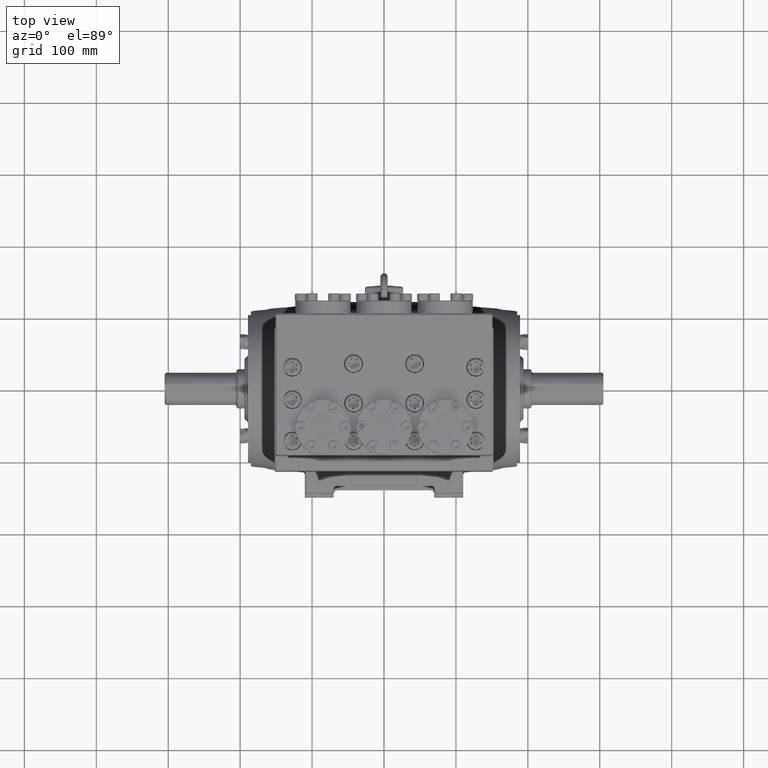
[diagram: clean part render]
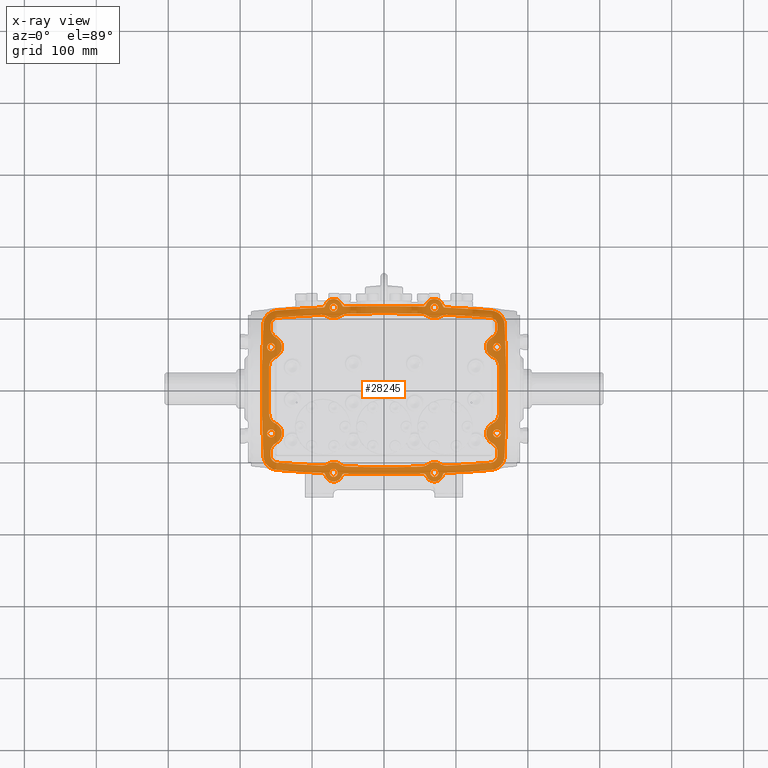
[diagram: x-ray — body ghosted, one internal face saturated and labeled with its STEP entity id]
A machine part, top view, then the same camera in x-ray: the body is ghosted and one INTERNAL B-rep face — a face not visible from any outside direction — is saturated and labeled: STEP entity #28245.
In plain terms, the highlighted planar face has unit normal (-0, 0, -1).
Its self-contained STEP definition (entity closure, byte-faithful):
#3 = VERTEX_POINT ( 'NONE', #17289 ) ;
#59 = ORIENTED_EDGE ( 'NONE', *, *, #76137, .T. ) ;
#153 = DIRECTION ( 'NONE',  ( -0.000000000000000000, -0.000000000000000000, -1.000000000000000000 ) ) ;
#180 = CARTESIAN_POINT ( 'NONE',  ( 6.181102362204724976, 2.362204724409448620, -4.572834645669291653 ) ) ;
#199 = CARTESIAN_POINT ( 'NONE',  ( 6.397637795275591621, -2.362204724409448620, -4.572834645669291653 ) ) ;
#458 = CARTESIAN_POINT ( 'NONE',  ( -3.328899281778211261, 4.528069397476806479, -4.572834645669291653 ) ) ;
#708 = AXIS2_PLACEMENT_3D ( 'NONE', #76529, #16491, #47667 ) ;
#752 = CIRCLE ( 'NONE', #54449, 0.5905511811023627100 ) ;
#789 = CARTESIAN_POINT ( 'NONE',  ( 3.079201460133393020, -4.033362305533763958, -4.572834645669291653 ) ) ;
#970 = EDGE_CURVE ( 'NONE', #61017, #12101, #74865, .T. ) ;
#1015 = DIRECTION ( 'NONE',  ( 1.000000000000000000, 0.000000000000000000, 0.000000000000000000 ) ) ;
#1100 = DIRECTION ( 'NONE',  ( -1.000000000000000000, 0.000000000000000000, 0.000000000000000000 ) ) ;
#1115 = EDGE_CURVE ( 'NONE', #35285, #23664, #55731, .T. ) ;
#1175 = EDGE_CURVE ( 'NONE', #4212, #17068, #752, .T. ) ;
#1239 = ORIENTED_EDGE ( 'NONE', *, *, #3572, .T. ) ;
#1321 = DIRECTION ( 'NONE',  ( 1.000000000000000000, 0.000000000000000000, 0.000000000000000000 ) ) ;
#1392 = DIRECTION ( 'NONE',  ( -1.000000000000000000, 0.000000000000000000, 0.000000000000000000 ) ) ;
#1599 = AXIS2_PLACEMENT_3D ( 'NONE', #25656, #75299, #19266 ) ;
#1655 = CARTESIAN_POINT ( 'NONE',  ( 0.000000000000000000, 66.25984251968503713, -4.572834645669291653 ) ) ;
#1667 = CIRCLE ( 'NONE', #77096, 0.2165354330708663400 ) ;
#1731 = CARTESIAN_POINT ( 'NONE',  ( -6.600522642258374262, 3.617487388704967888, -4.572834645669291653 ) ) ;
#1845 = AXIS2_PLACEMENT_3D ( 'NONE', #59179, #71594, #66382 ) ;
#1865 = CARTESIAN_POINT ( 'NONE',  ( 6.397637795275590733, 2.362204724409448620, -4.572834645669291653 ) ) ;
#1930 = VERTEX_POINT ( 'NONE', #5115 ) ;
#2183 = EDGE_CURVE ( 'NONE', #37829, #63983, #13683, .T. ) ;
#2198 = CIRCLE ( 'NONE', #31557, 0.2165354330708663400 ) ;
#2311 = VERTEX_POINT ( 'NONE', #66330 ) ;
#2314 = CARTESIAN_POINT ( 'NONE',  ( 0.000000000000000000, 66.25984251968503713, -4.572834645669291653 ) ) ;
#2423 = ORIENTED_EDGE ( 'NONE', *, *, #73412, .T. ) ;
#2467 = DIRECTION ( 'NONE',  ( -0.000000000000000000, -0.000000000000000000, -1.000000000000000000 ) ) ;
#2923 = VERTEX_POINT ( 'NONE', #17966 ) ;
#2963 = DIRECTION ( 'NONE',  ( -0.000000000000000000, -0.000000000000000000, -1.000000000000000000 ) ) ;
#3117 = DIRECTION ( 'NONE',  ( 1.000000000000000000, 0.000000000000000000, 0.000000000000000000 ) ) ;
#3176 = CARTESIAN_POINT ( 'NONE',  ( -2.395166083321290884, 4.059993271260593062, -4.572834645669291653 ) ) ;
#3273 = DIRECTION ( 'NONE',  ( 0.000000000000000000, 0.000000000000000000, 1.000000000000000000 ) ) ;
#3410 = CARTESIAN_POINT ( 'NONE',  ( 2.539370078740156966, 4.527559055118110187, -4.572834645669291653 ) ) ;
#3572 = EDGE_CURVE ( 'NONE', #12101, #13991, #6117, .T. ) ;
#3632 = DIRECTION ( 'NONE',  ( -0.000000000000000000, -0.000000000000000000, -1.000000000000000000 ) ) ;
#3881 = ORIENTED_EDGE ( 'NONE', *, *, #74982, .F. ) ;
#4006 = DIRECTION ( 'NONE',  ( 1.000000000000000000, 0.000000000000000000, 0.000000000000000000 ) ) ;
#4015 = DIRECTION ( 'NONE',  ( -1.000000000000000000, 0.000000000000000000, 0.000000000000000000 ) ) ;
#4076 = FACE_BOUND ( 'NONE', #62497, .T. ) ;
#4195 = ORIENTED_EDGE ( 'NONE', *, *, #65212, .F. ) ;
#4212 = VERTEX_POINT ( 'NONE', #37776 ) ;
#4344 = AXIS2_PLACEMENT_3D ( 'NONE', #39128, #20298, #45141 ) ;
#4474 = FACE_OUTER_BOUND ( 'NONE', #20926, .T. ) ;
#4528 = CARTESIAN_POINT ( 'NONE',  ( 2.755905511811023612, -4.527559055118110187, -4.572834645669291653 ) ) ;
#4617 = DIRECTION ( 'NONE',  ( -0.000000000000000000, -0.000000000000000000, -1.000000000000000000 ) ) ;
#4672 = ORIENTED_EDGE ( 'NONE', *, *, #57983, .F. ) ;
#4774 = DIRECTION ( 'NONE',  ( -0.000000000000000000, -0.000000000000000000, -1.000000000000000000 ) ) ;
#5115 = CARTESIAN_POINT ( 'NONE',  ( -5.964566929133859219, -2.362204724409448620, -4.572834645669291653 ) ) ;
#5327 = CIRCLE ( 'NONE', #38513, 0.1181102362204725503 ) ;
#5411 = DIRECTION ( 'NONE',  ( -0.000000000000000000, -0.000000000000000000, -1.000000000000000000 ) ) ;
#5966 = CIRCLE ( 'NONE', #46879, 0.5905511811023627100 ) ;
#6094 = ORIENTED_EDGE ( 'NONE', *, *, #6836, .F. ) ;
#6107 = AXIS2_PLACEMENT_3D ( 'NONE', #47885, #60721, #65954 ) ;
#6117 = CIRCLE ( 'NONE', #17620, 0.5905511811023621549 ) ;
#6119 = CARTESIAN_POINT ( 'NONE',  ( -6.287298468513237815, -1.295798474597251726, -4.572834645669291653 ) ) ;
#6148 = ORIENTED_EDGE ( 'NONE', *, *, #57136, .T. ) ;
#6158 = AXIS2_PLACEMENT_3D ( 'NONE', #7379, #61446, #74237 ) ;
#6268 = VERTEX_POINT ( 'NONE', #43536 ) ;
#6294 = CIRCLE ( 'NONE', #15278, 0.2165354330708663400 ) ;
#6414 = CIRCLE ( 'NONE', #60133, 70.47244094488191024 ) ;
#6618 = EDGE_CURVE ( 'NONE', #22907, #42979, #67800, .T. ) ;
#6692 = VERTEX_POINT ( 'NONE', #33392 ) ;
#6836 = EDGE_CURVE ( 'NONE', #77907, #34891, #10126, .T. ) ;
#6913 = CARTESIAN_POINT ( 'NONE',  ( -3.431250907682157347, -4.129016328419574222, -4.572834645669291653 ) ) ;
#7286 = EDGE_CURVE ( 'NONE', #1930, #19369, #6294, .T. ) ;
#7379 = CARTESIAN_POINT ( 'NONE',  ( -2.188326920457461355, 4.690670183305741148, -4.572834645669291653 ) ) ;
#7456 = ORIENTED_EDGE ( 'NONE', *, *, #70019, .F. ) ;
#7540 = AXIS2_PLACEMENT_3D ( 'NONE', #45808, #70258, #60182 ) ;
#7718 = CARTESIAN_POINT ( 'NONE',  ( 2.034426654831557268, -3.592427487403074604, -4.572834645669291653 ) ) ;
#7860 = VERTEX_POINT ( 'NONE', #38895 ) ;
#7924 = ORIENTED_EDGE ( 'NONE', *, *, #1175, .T. ) ;
#8658 = DIRECTION ( 'NONE',  ( -0.000000000000000000, -0.000000000000000000, -1.000000000000000000 ) ) ;
#9042 = DIRECTION ( 'NONE',  ( 0.000000000000000000, 0.000000000000000000, 1.000000000000000000 ) ) ;
#9213 = VERTEX_POINT ( 'NONE', #28604 ) ;
#9218 = DIRECTION ( 'NONE',  ( -1.000000000000000000, 0.000000000000000000, 0.000000000000000000 ) ) ;
#9326 = EDGE_LOOP ( 'NONE', ( #30292, #4195 ) ) ;
#9487 = CIRCLE ( 'NONE', #19634, 0.7874015748031557571 ) ;
#9521 = VERTEX_POINT ( 'NONE', #76553 ) ;
#9811 = VERTEX_POINT ( 'NONE', #63292 ) ;
#9876 = CARTESIAN_POINT ( 'NONE',  ( -6.600522642258387584, -3.617487388704948792, -4.572834645669291653 ) ) ;
#9931 = CIRCLE ( 'NONE', #40613, 0.5905511811023624880 ) ;
#9935 = DIRECTION ( 'NONE',  ( -0.000000000000000000, -0.000000000000000000, -1.000000000000000000 ) ) ;
#9960 = CARTESIAN_POINT ( 'NONE',  ( -2.755905511811023612, -4.527559055118110187, -4.572834645669291653 ) ) ;
#9964 = EDGE_CURVE ( 'NONE', #76460, #30072, #57654, .T. ) ;
#9988 = EDGE_CURVE ( 'NONE', #58752, #9521, #71839, .T. ) ;
#10087 = FACE_BOUND ( 'NONE', #22882, .T. ) ;
#10126 = CIRCLE ( 'NONE', #7540, 0.3937007874015860942 ) ;
#10380 = ORIENTED_EDGE ( 'NONE', *, *, #6618, .T. ) ;
#10439 = AXIS2_PLACEMENT_3D ( 'NONE', #33141, #63592, #69211 ) ;
#10520 = DIRECTION ( 'NONE',  ( -0.000000000000000000, -0.000000000000000000, -1.000000000000000000 ) ) ;
#10617 = CARTESIAN_POINT ( 'NONE',  ( -5.625679077422456764, -3.404561556174485748, -4.572834645669291653 ) ) ;
#10659 = AXIS2_PLACEMENT_3D ( 'NONE', #33966, #73960, #49129 ) ;
#10695 = CARTESIAN_POINT ( 'NONE',  ( 5.696847126488347790, 1.284939828162083186, -4.572834645669291653 ) ) ;
#10722 = CARTESIAN_POINT ( 'NONE',  ( 2.755905511811023612, -4.527559055118110187, -4.572834645669291653 ) ) ;
#10895 = ORIENTED_EDGE ( 'NONE', *, *, #49360, .F. ) ;
#11044 = DIRECTION ( 'NONE',  ( -0.000000000000000000, 0.000000000000000000, 1.000000000000000000 ) ) ;
#11053 = DIRECTION ( 'NONE',  ( -1.000000000000000000, 0.000000000000000000, 0.000000000000000000 ) ) ;
#11093 = DIRECTION ( 'NONE',  ( -1.000000000000000000, 0.000000000000000000, 0.000000000000000000 ) ) ;
#11279 = EDGE_CURVE ( 'NONE', #42886, #56775, #29697, .T. ) ;
#11329 = CARTESIAN_POINT ( 'NONE',  ( -3.079201460133393020, -4.033362305533763958, -4.572834645669291653 ) ) ;
#11410 = CIRCLE ( 'NONE', #45855, 0.5905511811023627100 ) ;
#11537 = ORIENTED_EDGE ( 'NONE', *, *, #12977, .T. ) ;
#11669 = VERTEX_POINT ( 'NONE', #60656 ) ;
#11962 = CIRCLE ( 'NONE', #23465, 70.86614173228348079 ) ;
#12101 = VERTEX_POINT ( 'NONE', #11329 ) ;
#12376 = CARTESIAN_POINT ( 'NONE',  ( 5.846811382010137059, 3.969636542835852655, -4.572834645669291653 ) ) ;
#12418 = CIRCLE ( 'NONE', #20021, 0.3937007874015860942 ) ;
#12517 = CIRCLE ( 'NONE', #76383, 0.7874015748031557571 ) ;
#12660 = DIRECTION ( 'NONE',  ( -1.000000000000000000, 0.000000000000000000, 0.000000000000000000 ) ) ;
#12772 = DIRECTION ( 'NONE',  ( 1.000000000000000000, 0.000000000000000000, 0.000000000000000000 ) ) ;
#12803 = CARTESIAN_POINT ( 'NONE',  ( 5.879475132747624677, 4.361980001285700403, -4.572834645669291653 ) ) ;
#12972 = AXIS2_PLACEMENT_3D ( 'NONE', #29820, #67458, #54228 ) ;
#12977 = EDGE_CURVE ( 'NONE', #33896, #21367, #9487, .T. ) ;
#13181 = CARTESIAN_POINT ( 'NONE',  ( -2.301842638728265111, 4.658047957668189021, -4.572834645669291653 ) ) ;
#13252 = ORIENTED_EDGE ( 'NONE', *, *, #28839, .T. ) ;
#13334 = EDGE_CURVE ( 'NONE', #34012, #55163, #55897, .T. ) ;
#13346 = VERTEX_POINT ( 'NONE', #48740 ) ;
#13354 = VERTEX_POINT ( 'NONE', #66017 ) ;
#13388 = CARTESIAN_POINT ( 'NONE',  ( 3.431250907682157347, -4.129016328419574222, -4.572834645669291653 ) ) ;
#13619 = DIRECTION ( 'NONE',  ( 0.000000000000000000, 0.000000000000000000, 1.000000000000000000 ) ) ;
#13629 = AXIS2_PLACEMENT_3D ( 'NONE', #4528, #71012, #34539 ) ;
#13657 = DIRECTION ( 'NONE',  ( -1.000000000000000000, 0.000000000000000000, 0.000000000000000000 ) ) ;
#13683 = CIRCLE ( 'NONE', #46872, 0.2165354330708663400 ) ;
#13728 = DIRECTION ( 'NONE',  ( 1.000000000000000000, 0.000000000000000000, 0.000000000000000000 ) ) ;
#13786 = CIRCLE ( 'NONE', #40579, 0.2165354330708663400 ) ;
#13991 = VERTEX_POINT ( 'NONE', #6913 ) ;
#14280 = DIRECTION ( 'NONE',  ( -1.000000000000000000, 0.000000000000000000, 0.000000000000000000 ) ) ;
#14294 = DIRECTION ( 'NONE',  ( 1.000000000000000000, 0.000000000000000000, 0.000000000000000000 ) ) ;
#14489 = AXIS2_PLACEMENT_3D ( 'NONE', #9960, #15583, #34359 ) ;
#14616 = CIRCLE ( 'NONE', #23541, 0.7874015748031557571 ) ;
#14731 = CARTESIAN_POINT ( 'NONE',  ( -2.755905511811023612, 4.527559055118110187, -4.572834645669291653 ) ) ;
#14883 = EDGE_CURVE ( 'NONE', #22781, #33896, #34196, .T. ) ;
#15021 = DIRECTION ( 'NONE',  ( -0.000000000000000000, -0.000000000000000000, -1.000000000000000000 ) ) ;
#15044 = EDGE_CURVE ( 'NONE', #54892, #61017, #9931, .T. ) ;
#15074 = CARTESIAN_POINT ( 'NONE',  ( 3.334447447247841367, -4.646049250672071196, -4.572834645669291653 ) ) ;
#15128 = CARTESIAN_POINT ( 'NONE',  ( 5.846811382010123737, -3.969636542835872195, -4.572834645669291653 ) ) ;
#15227 = DIRECTION ( 'NONE',  ( -0.000000000000000000, 0.000000000000000000, 1.000000000000000000 ) ) ;
#15278 = AXIS2_PLACEMENT_3D ( 'NONE', #30435, #65722, #42076 ) ;
#15464 = DIRECTION ( 'NONE',  ( -0.000000000000000000, -0.000000000000000000, -1.000000000000000000 ) ) ;
#15583 = DIRECTION ( 'NONE',  ( 0.000000000000000000, 0.000000000000000000, 1.000000000000000000 ) ) ;
#15680 = AXIS2_PLACEMENT_3D ( 'NONE', #24633, #78301, #61099 ) ;
#15763 = DIRECTION ( 'NONE',  ( 1.000000000000000000, 0.000000000000000000, 0.000000000000000000 ) ) ;
#15840 = VERTEX_POINT ( 'NONE', #63273 ) ;
#15881 = AXIS2_PLACEMENT_3D ( 'NONE', #52476, #22458, #77700 ) ;
#16022 = CARTESIAN_POINT ( 'NONE',  ( 5.696847126488347790, -1.284939828162083186, -4.572834645669291653 ) ) ;
#16441 = ORIENTED_EDGE ( 'NONE', *, *, #19661, .T. ) ;
#16491 = DIRECTION ( 'NONE',  ( -0.000000000000000000, 0.000000000000000000, -1.000000000000000000 ) ) ;
#16556 = VERTEX_POINT ( 'NONE', #77589 ) ;
#16763 = CARTESIAN_POINT ( 'NONE',  ( 2.051618992759706384, 4.182728360702427040, -4.572834645669291653 ) ) ;
#16875 = FACE_BOUND ( 'NONE', #23961, .T. ) ;
#16989 = EDGE_CURVE ( 'NONE', #23664, #19161, #74040, .T. ) ;
#17065 = AXIS2_PLACEMENT_3D ( 'NONE', #31265, #49661, #13657 ) ;
#17068 = VERTEX_POINT ( 'NONE', #23822 ) ;
#17208 = CIRCLE ( 'NONE', #29998, 0.5905511811023621549 ) ;
#17289 = CARTESIAN_POINT ( 'NONE',  ( -2.972440944881889813, -4.527559055118110187, -4.572834645669291653 ) ) ;
#17357 = EDGE_CURVE ( 'NONE', #56775, #42886, #20182, .T. ) ;
#17620 = AXIS2_PLACEMENT_3D ( 'NONE', #34422, #58862, #4015 ) ;
#17715 = DIRECTION ( 'NONE',  ( -1.000000000000000000, 0.000000000000000000, 0.000000000000000000 ) ) ;
#17806 = DIRECTION ( 'NONE',  ( -1.000000000000000000, 0.000000000000000000, 0.000000000000000000 ) ) ;
#17966 = CARTESIAN_POINT ( 'NONE',  ( 3.328899281778332053, 4.528069397476797597, -4.572834645669291653 ) ) ;
#18409 = CIRCLE ( 'NONE', #68278, 70.47244094488188182 ) ;
#18651 = AXIS2_PLACEMENT_3D ( 'NONE', #15074, #15464, #51074 ) ;
#19161 = VERTEX_POINT ( 'NONE', #3176 ) ;
#19178 = EDGE_CURVE ( 'NONE', #46823, #40504, #41341, .T. ) ;
#19236 = ORIENTED_EDGE ( 'NONE', *, *, #56728, .F. ) ;
#19252 = VERTEX_POINT ( 'NONE', #66790 ) ;
#19266 = DIRECTION ( 'NONE',  ( -1.000000000000000000, 0.000000000000000000, 0.000000000000000000 ) ) ;
#19369 = VERTEX_POINT ( 'NONE', #56732 ) ;
#19541 = EDGE_CURVE ( 'NONE', #60143, #2311, #41396, .T. ) ;
#19634 = AXIS2_PLACEMENT_3D ( 'NONE', #55650, #13619, #74852 ) ;
#19655 = DIRECTION ( 'NONE',  ( -0.000000000000000000, -0.000000000000000000, -1.000000000000000000 ) ) ;
#19661 = EDGE_CURVE ( 'NONE', #2923, #9521, #45218, .T. ) ;
#19708 = DIRECTION ( 'NONE',  ( 0.000000000000000000, 0.000000000000000000, 1.000000000000000000 ) ) ;
#19766 = CIRCLE ( 'NONE', #24905, 0.5905511811023621549 ) ;
#19866 = CARTESIAN_POINT ( 'NONE',  ( -3.218739060160478171, 4.622351211561278816, -4.572834645669291653 ) ) ;
#19964 = DIRECTION ( 'NONE',  ( 0.000000000000000000, 0.000000000000000000, 1.000000000000000000 ) ) ;
#20000 = EDGE_CURVE ( 'NONE', #13354, #71837, #63140, .T. ) ;
#20021 = AXIS2_PLACEMENT_3D ( 'NONE', #22911, #70615, #58587 ) ;
#20045 = DIRECTION ( 'NONE',  ( 1.000000000000000000, 0.000000000000000000, 0.000000000000000000 ) ) ;
#20182 = CIRCLE ( 'NONE', #55979, 0.2165354330708663400 ) ;
#20298 = DIRECTION ( 'NONE',  ( -0.000000000000000000, -0.000000000000000000, -1.000000000000000000 ) ) ;
#20548 = EDGE_CURVE ( 'NONE', #60208, #49169, #14616, .T. ) ;
#20687 = CARTESIAN_POINT ( 'NONE',  ( 6.600522642258387584, -3.617487388704948792, -4.572834645669291653 ) ) ;
#20712 = DIRECTION ( 'NONE',  ( -0.000000000000000000, 0.000000000000000000, 1.000000000000000000 ) ) ;
#20837 = CIRCLE ( 'NONE', #32332, 0.2165354330708663400 ) ;
#20926 = EDGE_LOOP ( 'NONE', ( #36577, #13252, #55679, #72326, #22087, #50005, #19236, #56758, #4672, #50240, #74782, #16441, #70485, #59552, #60822, #68368, #61123, #25030, #57050, #11537, #49381, #52901, #61321, #23394 ) ) ;
#20936 = AXIS2_PLACEMENT_3D ( 'NONE', #2314, #76739, #3117 ) ;
#21101 = VERTEX_POINT ( 'NONE', #68703 ) ;
#21275 = AXIS2_PLACEMENT_3D ( 'NONE', #75488, #69133, #14280 ) ;
#21367 = VERTEX_POINT ( 'NONE', #1731 ) ;
#21795 = DIRECTION ( 'NONE',  ( -0.000000000000000000, -0.000000000000000000, -1.000000000000000000 ) ) ;
#21859 = DIRECTION ( 'NONE',  ( -1.000000000000000000, 0.000000000000000000, 0.000000000000000000 ) ) ;
#21896 = EDGE_CURVE ( 'NONE', #47613, #60143, #25353, .T. ) ;
#21910 = VERTEX_POINT ( 'NONE', #69692 ) ;
#22087 = ORIENTED_EDGE ( 'NONE', *, *, #38348, .F. ) ;
#22286 = ORIENTED_EDGE ( 'NONE', *, *, #19541, .F. ) ;
#22366 = CIRCLE ( 'NONE', #35170, 0.2165354330708663400 ) ;
#22387 = CARTESIAN_POINT ( 'NONE',  ( -5.938974744346537271, 1.823572276285767568, -4.572834645669291653 ) ) ;
#22434 = CARTESIAN_POINT ( 'NONE',  ( -5.879475132747624677, 4.361980001285700403, -4.572834645669291653 ) ) ;
#22443 = CARTESIAN_POINT ( 'NONE',  ( -2.539370078740156966, -4.527559055118110187, -4.572834645669291653 ) ) ;
#22447 = DIRECTION ( 'NONE',  ( 1.000000000000000000, 0.000000000000000000, 0.000000000000000000 ) ) ;
#22458 = DIRECTION ( 'NONE',  ( -0.000000000000000000, -0.000000000000000000, -1.000000000000000000 ) ) ;
#22527 = DIRECTION ( 'NONE',  ( -1.000000000000000000, 0.000000000000000000, 0.000000000000000000 ) ) ;
#22781 = VERTEX_POINT ( 'NONE', #458 ) ;
#22816 = CARTESIAN_POINT ( 'NONE',  ( -3.079201460133393464, 4.033362305533763958, -4.572834645669291653 ) ) ;
#22882 = EDGE_LOOP ( 'NONE', ( #33052, #55380 ) ) ;
#22907 = VERTEX_POINT ( 'NONE', #49188 ) ;
#22911 = CARTESIAN_POINT ( 'NONE',  ( -5.814147631272645000, -3.577293084386023114, -4.572834645669291653 ) ) ;
#22966 = VERTEX_POINT ( 'NONE', #13181 ) ;
#23048 = ORIENTED_EDGE ( 'NONE', *, *, #16989, .T. ) ;
#23155 = CARTESIAN_POINT ( 'NONE',  ( -2.188326920457581259, -4.690670183305729601, -4.572834645669291653 ) ) ;
#23166 = ORIENTED_EDGE ( 'NONE', *, *, #54973, .T. ) ;
#23176 = DIRECTION ( 'NONE',  ( -1.000000000000000000, 0.000000000000000000, 0.000000000000000000 ) ) ;
#23260 = ORIENTED_EDGE ( 'NONE', *, *, #19178, .F. ) ;
#23394 = ORIENTED_EDGE ( 'NONE', *, *, #78581, .T. ) ;
#23465 = AXIS2_PLACEMENT_3D ( 'NONE', #75439, #74274, #37431 ) ;
#23541 = AXIS2_PLACEMENT_3D ( 'NONE', #63464, #15021, #1015 ) ;
#23664 = VERTEX_POINT ( 'NONE', #22816 ) ;
#23707 = DIRECTION ( 'NONE',  ( 0.000000000000000000, 0.000000000000000000, 1.000000000000000000 ) ) ;
#23820 = CARTESIAN_POINT ( 'NONE',  ( 2.972440944881889813, -4.527559055118110187, -4.572834645669291653 ) ) ;
#23822 = CARTESIAN_POINT ( 'NONE',  ( -5.903390719813591758, -2.883383140291965852, -4.572834645669291653 ) ) ;
#23923 = DIRECTION ( 'NONE',  ( -0.000000000000000000, -0.000000000000000000, -1.000000000000000000 ) ) ;
#23961 = EDGE_LOOP ( 'NONE', ( #65823, #54753 ) ) ;
#24410 = CIRCLE ( 'NONE', #69208, 0.5905511811023624880 ) ;
#24633 = CARTESIAN_POINT ( 'NONE',  ( 64.17322834645671037, 0.000000000000000000, -4.572834645669291653 ) ) ;
#24905 = AXIS2_PLACEMENT_3D ( 'NONE', #31410, #37797, #60664 ) ;
#24999 = CARTESIAN_POINT ( 'NONE',  ( -6.181102362204724976, 2.362204724409448620, -4.572834645669291653 ) ) ;
#25030 = ORIENTED_EDGE ( 'NONE', *, *, #69398, .T. ) ;
#25339 = ORIENTED_EDGE ( 'NONE', *, *, #1115, .T. ) ;
#25353 = CIRCLE ( 'NONE', #75242, 0.3937007874015839293 ) ;
#25504 = AXIS2_PLACEMENT_3D ( 'NONE', #60825, #35985, #12772 ) ;
#25568 = DIRECTION ( 'NONE',  ( 1.000000000000000000, 0.000000000000000000, 0.000000000000000000 ) ) ;
#25656 = CARTESIAN_POINT ( 'NONE',  ( 6.181102362204724976, 2.362204724409448620, -4.572834645669291653 ) ) ;
#25998 = ORIENTED_EDGE ( 'NONE', *, *, #56890, .F. ) ;
#26056 = DIRECTION ( 'NONE',  ( -0.000000000000000000, -0.000000000000000000, -1.000000000000000000 ) ) ;
#26295 = AXIS2_PLACEMENT_3D ( 'NONE', #34276, #76711, #21859 ) ;
#26316 = DIRECTION ( 'NONE',  ( -0.000000000000000000, -0.000000000000000000, -1.000000000000000000 ) ) ;
#26422 = CARTESIAN_POINT ( 'NONE',  ( 2.034426654831557268, 3.592427487403074604, -4.572834645669291653 ) ) ;
#26608 = VERTEX_POINT ( 'NONE', #9876 ) ;
#26639 = EDGE_CURVE ( 'NONE', #34891, #51037, #63371, .T. ) ;
#26710 = CARTESIAN_POINT ( 'NONE',  ( 2.972440944881889813, 4.527559055118110187, -4.572834645669291653 ) ) ;
#27046 = CARTESIAN_POINT ( 'NONE',  ( -2.972440944881889813, 4.527559055118110187, -4.572834645669291653 ) ) ;
#27127 = CARTESIAN_POINT ( 'NONE',  ( 0.000000000000000000, 66.25984251968503713, -4.572834645669291653 ) ) ;
#27159 = DIRECTION ( 'NONE',  ( 1.000000000000000000, 0.000000000000000000, 0.000000000000000000 ) ) ;
#27189 = EDGE_LOOP ( 'NONE', ( #6148, #55793 ) ) ;
#27597 = CARTESIAN_POINT ( 'NONE',  ( 5.903390719813591758, 2.883383140291965852, -4.572834645669291653 ) ) ;
#28177 = EDGE_CURVE ( 'NONE', #56072, #13354, #33958, .T. ) ;
#28227 = DIRECTION ( 'NONE',  ( 1.000000000000000000, 0.000000000000000000, 0.000000000000000000 ) ) ;
#28245 = ADVANCED_FACE ( 'NONE', ( #52903, #65341, #40897, #16875, #4076, #4474, #64163, #53675, #10087, #77326 ), #64956, .F. ) ;
#28480 = DIRECTION ( 'NONE',  ( -0.000000000000000000, -0.000000000000000000, -1.000000000000000000 ) ) ;
#28604 = CARTESIAN_POINT ( 'NONE',  ( -6.207335136765529171, -3.597390236545476405, -4.572834645669291653 ) ) ;
#28621 = VERTEX_POINT ( 'NONE', #27597 ) ;
#28676 = CIRCLE ( 'NONE', #69634, 0.5905511811023627100 ) ;
#28725 = DIRECTION ( 'NONE',  ( -1.000000000000000000, 0.000000000000000000, 0.000000000000000000 ) ) ;
#28737 = CIRCLE ( 'NONE', #38974, 0.5905511811023627100 ) ;
#28839 = EDGE_CURVE ( 'NONE', #65153, #6268, #57011, .T. ) ;
#29267 = CARTESIAN_POINT ( 'NONE',  ( 0.000000000000000000, 66.25984251968503713, -4.572834645669291653 ) ) ;
#29667 = VERTEX_POINT ( 'NONE', #16763 ) ;
#29697 = CIRCLE ( 'NONE', #74453, 0.2165354330708663400 ) ;
#29820 = CARTESIAN_POINT ( 'NONE',  ( -6.181102362204724976, 2.362204724409448620, -4.572834645669291653 ) ) ;
#29925 = CIRCLE ( 'NONE', #38894, 0.5905511811023624880 ) ;
#29951 = CARTESIAN_POINT ( 'NONE',  ( 2.755905511811023612, -4.527559055118110187, -4.572834645669291653 ) ) ;
#29998 = AXIS2_PLACEMENT_3D ( 'NONE', #65901, #11044, #30609 ) ;
#30051 = CIRCLE ( 'NONE', #37705, 70.47244094488191024 ) ;
#30072 = VERTEX_POINT ( 'NONE', #44250 ) ;
#30292 = ORIENTED_EDGE ( 'NONE', *, *, #7286, .F. ) ;
#30435 = CARTESIAN_POINT ( 'NONE',  ( -6.181102362204725864, -2.362204724409448620, -4.572834645669291653 ) ) ;
#30599 = VERTEX_POINT ( 'NONE', #70066 ) ;
#30609 = DIRECTION ( 'NONE',  ( 1.000000000000000000, 0.000000000000000000, 0.000000000000000000 ) ) ;
#31265 = CARTESIAN_POINT ( 'NONE',  ( -5.625679077422456764, 3.404561556174486636, -4.572834645669291653 ) ) ;
#31410 = CARTESIAN_POINT ( 'NONE',  ( 3.402497408455763317, 3.539165555949416841, -4.572834645669291653 ) ) ;
#31466 = EDGE_CURVE ( 'NONE', #57454, #21910, #6414, .T. ) ;
#31511 = AXIS2_PLACEMENT_3D ( 'NONE', #49134, #66796, #37121 ) ;
#31557 = AXIS2_PLACEMENT_3D ( 'NONE', #44999, #45401, #69450 ) ;
#31588 = VERTEX_POINT ( 'NONE', #38530 ) ;
#31603 = ORIENTED_EDGE ( 'NONE', *, *, #20000, .F. ) ;
#31630 = CIRCLE ( 'NONE', #73838, 0.5905511811023627100 ) ;
#32055 = DIRECTION ( 'NONE',  ( -1.000000000000000000, 0.000000000000000000, 0.000000000000000000 ) ) ;
#32332 = AXIS2_PLACEMENT_3D ( 'NONE', #57590, #54229, #78658 ) ;
#32443 = ORIENTED_EDGE ( 'NONE', *, *, #17357, .T. ) ;
#32488 = CARTESIAN_POINT ( 'NONE',  ( 0.000000000000000000, -66.25984251968503713, -4.572834645669291653 ) ) ;
#32666 = ORIENTED_EDGE ( 'NONE', *, *, #11279, .T. ) ;
#32892 = DIRECTION ( 'NONE',  ( -1.000000000000000000, 0.000000000000000000, 0.000000000000000000 ) ) ;
#32922 = EDGE_CURVE ( 'NONE', #58752, #76460, #5327, .T. ) ;
#33052 = ORIENTED_EDGE ( 'NONE', *, *, #56591, .T. ) ;
#33063 = DIRECTION ( 'NONE',  ( 1.000000000000000000, 0.000000000000000000, 0.000000000000000000 ) ) ;
#33141 = CARTESIAN_POINT ( 'NONE',  ( 64.17322834645671037, 0.000000000000000000, -4.572834645669291653 ) ) ;
#33261 = AXIS2_PLACEMENT_3D ( 'NONE', #45416, #39398, #1392 ) ;
#33386 = EDGE_CURVE ( 'NONE', #51037, #46823, #11410, .T. ) ;
#33392 = CARTESIAN_POINT ( 'NONE',  ( 5.964566929133858331, 2.362204724409448620, -4.572834645669291653 ) ) ;
#33563 = CARTESIAN_POINT ( 'NONE',  ( -3.431250907682149798, 4.129016328419567117, -4.572834645669291653 ) ) ;
#33600 = ORIENTED_EDGE ( 'NONE', *, *, #33386, .F. ) ;
#33614 = DIRECTION ( 'NONE',  ( 1.000000000000000000, 0.000000000000000000, 0.000000000000000000 ) ) ;
#33896 = VERTEX_POINT ( 'NONE', #22434 ) ;
#33958 = CIRCLE ( 'NONE', #41648, 0.5905511811023624880 ) ;
#33966 = CARTESIAN_POINT ( 'NONE',  ( 6.181102362204725864, -2.362204724409448620, -4.572834645669291653 ) ) ;
#34012 = VERTEX_POINT ( 'NONE', #12803 ) ;
#34026 = CIRCLE ( 'NONE', #31511, 0.5905511811023627100 ) ;
#34196 = CIRCLE ( 'NONE', #78944, 70.86614173228346658 ) ;
#34238 = CARTESIAN_POINT ( 'NONE',  ( -2.755905511811023612, -4.527559055118110187, -4.572834645669291653 ) ) ;
#34276 = CARTESIAN_POINT ( 'NONE',  ( -64.17322834645671037, 0.000000000000000000, -4.572834645669291653 ) ) ;
#34359 = DIRECTION ( 'NONE',  ( 1.000000000000000000, 0.000000000000000000, 0.000000000000000000 ) ) ;
#34414 = DIRECTION ( 'NONE',  ( 0.000000000000000000, 0.000000000000000000, 1.000000000000000000 ) ) ;
#34422 = CARTESIAN_POINT ( 'NONE',  ( -3.402497408455763317, -3.539165555949416841, -4.572834645669291653 ) ) ;
#34539 = DIRECTION ( 'NONE',  ( -1.000000000000000000, 0.000000000000000000, 0.000000000000000000 ) ) ;
#34765 = ORIENTED_EDGE ( 'NONE', *, *, #65774, .F. ) ;
#34891 = VERTEX_POINT ( 'NONE', #53835 ) ;
#35104 = EDGE_CURVE ( 'NONE', #17068, #19252, #41039, .T. ) ;
#35170 = AXIS2_PLACEMENT_3D ( 'NONE', #24999, #68659, #73058 ) ;
#35285 = VERTEX_POINT ( 'NONE', #33563 ) ;
#35959 = DIRECTION ( 'NONE',  ( -0.000000000000000000, -0.000000000000000000, -1.000000000000000000 ) ) ;
#35961 = CARTESIAN_POINT ( 'NONE',  ( 2.301842638728269996, 4.658047957668205896, -4.572834645669291653 ) ) ;
#35976 = CIRCLE ( 'NONE', #43642, 0.5905511811023583801 ) ;
#35985 = DIRECTION ( 'NONE',  ( -0.000000000000000000, -0.000000000000000000, -1.000000000000000000 ) ) ;
#36064 = VERTEX_POINT ( 'NONE', #36392 ) ;
#36356 = DIRECTION ( 'NONE',  ( 0.000000000000000000, 0.000000000000000000, 1.000000000000000000 ) ) ;
#36392 = CARTESIAN_POINT ( 'NONE',  ( -5.903390719813591758, 2.883383140291965852, -4.572834645669291653 ) ) ;
#36499 = CARTESIAN_POINT ( 'NONE',  ( -6.397637795275590733, 2.362204724409448620, -4.572834645669291653 ) ) ;
#36524 = CARTESIAN_POINT ( 'NONE',  ( -6.181102362204725864, -2.362204724409448620, -4.572834645669291653 ) ) ;
#36539 = AXIS2_PLACEMENT_3D ( 'NONE', #32488, #2467, #63726 ) ;
#36577 = ORIENTED_EDGE ( 'NONE', *, *, #42649, .T. ) ;
#36637 = DIRECTION ( 'NONE',  ( 0.000000000000000000, 0.000000000000000000, 1.000000000000000000 ) ) ;
#37121 = DIRECTION ( 'NONE',  ( 1.000000000000000000, 0.000000000000000000, 0.000000000000000000 ) ) ;
#37367 = CARTESIAN_POINT ( 'NONE',  ( 2.301842638728265111, -4.658047957668189021, -4.572834645669291653 ) ) ;
#37431 = DIRECTION ( 'NONE',  ( -1.000000000000000000, 0.000000000000000000, 0.000000000000000000 ) ) ;
#37479 = CARTESIAN_POINT ( 'NONE',  ( -6.207335136765515848, 3.597390236545493281, -4.572834645669291653 ) ) ;
#37634 = VERTEX_POINT ( 'NONE', #19866 ) ;
#37705 = AXIS2_PLACEMENT_3D ( 'NONE', #52281, #63537, #11053 ) ;
#37706 = ORIENTED_EDGE ( 'NONE', *, *, #28177, .F. ) ;
#37776 = CARTESIAN_POINT ( 'NONE',  ( -6.215528999314393843, -3.433332498902720964, -4.572834645669291653 ) ) ;
#37797 = DIRECTION ( 'NONE',  ( -0.000000000000000000, 0.000000000000000000, 1.000000000000000000 ) ) ;
#37829 = VERTEX_POINT ( 'NONE', #27046 ) ;
#37895 = EDGE_CURVE ( 'NONE', #7860, #54483, #64748, .T. ) ;
#38348 = EDGE_CURVE ( 'NONE', #7860, #54991, #71203, .T. ) ;
#38425 = VERTEX_POINT ( 'NONE', #39277 ) ;
#38445 = EDGE_CURVE ( 'NONE', #19252, #57454, #5966, .T. ) ;
#38472 = VERTEX_POINT ( 'NONE', #22443 ) ;
#38513 = AXIS2_PLACEMENT_3D ( 'NONE', #63702, #3632, #40444 ) ;
#38530 = CARTESIAN_POINT ( 'NONE',  ( 6.287298468513237815, -1.295798474597251726, -4.572834645669291653 ) ) ;
#38672 = CIRCLE ( 'NONE', #61728, 0.5905511811023583801 ) ;
#38894 = AXIS2_PLACEMENT_3D ( 'NONE', #78717, #65553, #11093 ) ;
#38895 = CARTESIAN_POINT ( 'NONE',  ( 3.218739060160478171, -4.622351211561278816, -4.572834645669291653 ) ) ;
#38921 = EDGE_CURVE ( 'NONE', #42979, #22907, #2198, .T. ) ;
#38974 = AXIS2_PLACEMENT_3D ( 'NONE', #16022, #15227, #33614 ) ;
#39057 = CIRCLE ( 'NONE', #36539, 70.86614173228346658 ) ;
#39128 = CARTESIAN_POINT ( 'NONE',  ( 2.188326920457461355, -4.690670183305741148, -4.572834645669291653 ) ) ;
#39159 = EDGE_CURVE ( 'NONE', #50156, #77907, #76308, .T. ) ;
#39277 = CARTESIAN_POINT ( 'NONE',  ( 6.287298468513236038, 1.295798474597255501, -4.572834645669291653 ) ) ;
#39298 = DIRECTION ( 'NONE',  ( -0.000000000000000000, 0.000000000000000000, 1.000000000000000000 ) ) ;
#39398 = DIRECTION ( 'NONE',  ( -0.000000000000000000, -0.000000000000000000, -1.000000000000000000 ) ) ;
#39558 = DIRECTION ( 'NONE',  ( -0.000000000000000000, 0.000000000000000000, 1.000000000000000000 ) ) ;
#39666 = CARTESIAN_POINT ( 'NONE',  ( 2.539370078740156966, -4.527559055118110187, -4.572834645669291653 ) ) ;
#39705 = ORIENTED_EDGE ( 'NONE', *, *, #21896, .F. ) ;
#40444 = DIRECTION ( 'NONE',  ( -1.000000000000000000, 0.000000000000000000, 0.000000000000000000 ) ) ;
#40504 = VERTEX_POINT ( 'NONE', #49011 ) ;
#40579 = AXIS2_PLACEMENT_3D ( 'NONE', #51131, #26316, #75551 ) ;
#40613 = AXIS2_PLACEMENT_3D ( 'NONE', #74378, #35959, #78793 ) ;
#40685 = DIRECTION ( 'NONE',  ( 1.000000000000000000, 0.000000000000000000, 0.000000000000000000 ) ) ;
#40733 = CIRCLE ( 'NONE', #66301, 0.3937007874015839293 ) ;
#40897 = FACE_BOUND ( 'NONE', #9326, .T. ) ;
#40955 = EDGE_CURVE ( 'NONE', #2923, #34012, #39057, .T. ) ;
#41021 = DIRECTION ( 'NONE',  ( 1.000000000000000000, 0.000000000000000000, 0.000000000000000000 ) ) ;
#41039 = CIRCLE ( 'NONE', #51246, 0.5905511811023583801 ) ;
#41341 = CIRCLE ( 'NONE', #10659, 0.5905511811023583801 ) ;
#41351 = CIRCLE ( 'NONE', #17065, 0.5905511811023627100 ) ;
#41396 = CIRCLE ( 'NONE', #49032, 70.47244094488188182 ) ;
#41441 = DIRECTION ( 'NONE',  ( 1.000000000000000000, 0.000000000000000000, 0.000000000000000000 ) ) ;
#41648 = AXIS2_PLACEMENT_3D ( 'NONE', #7718, #50925, #63370 ) ;
#41765 = DIRECTION ( 'NONE',  ( -0.000000000000000000, -0.000000000000000000, -1.000000000000000000 ) ) ;
#42067 = EDGE_CURVE ( 'NONE', #66253, #45345, #22366, .T. ) ;
#42076 = DIRECTION ( 'NONE',  ( 1.000000000000000000, 0.000000000000000000, 0.000000000000000000 ) ) ;
#42106 = ORIENTED_EDGE ( 'NONE', *, *, #70453, .F. ) ;
#42166 = CIRCLE ( 'NONE', #25504, 70.47244094488188182 ) ;
#42208 = DIRECTION ( 'NONE',  ( 1.000000000000000000, 0.000000000000000000, 0.000000000000000000 ) ) ;
#42371 = CARTESIAN_POINT ( 'NONE',  ( -2.755905511811023612, 4.527559055118110187, -4.572834645669291653 ) ) ;
#42649 = EDGE_CURVE ( 'NONE', #62228, #65153, #62059, .T. ) ;
#42886 = VERTEX_POINT ( 'NONE', #23820 ) ;
#42979 = VERTEX_POINT ( 'NONE', #199 ) ;
#43156 = AXIS2_PLACEMENT_3D ( 'NONE', #73182, #47555, #78785 ) ;
#43536 = CARTESIAN_POINT ( 'NONE',  ( -2.184685777495090075, -4.572616085630212268, -4.572834645669291653 ) ) ;
#43550 = ORIENTED_EDGE ( 'NONE', *, *, #49656, .T. ) ;
#43642 = AXIS2_PLACEMENT_3D ( 'NONE', #180, #5411, #17806 ) ;
#43798 = EDGE_CURVE ( 'NONE', #21910, #68841, #34026, .T. ) ;
#44003 = AXIS2_PLACEMENT_3D ( 'NONE', #53605, #78039, #23176 ) ;
#44045 = CIRCLE ( 'NONE', #44003, 0.1181102362204725503 ) ;
#44250 = CARTESIAN_POINT ( 'NONE',  ( -2.184685777494969727, 4.572616085630212268, -4.572834645669291653 ) ) ;
#44412 = CARTESIAN_POINT ( 'NONE',  ( -2.755905511811023612, 4.527559055118110187, -4.572834645669291653 ) ) ;
#44414 = CARTESIAN_POINT ( 'NONE',  ( 5.903390719813591758, -2.883383140291965852, -4.572834645669291653 ) ) ;
#44455 = AXIS2_PLACEMENT_3D ( 'NONE', #49283, #19655, #32055 ) ;
#44706 = DIRECTION ( 'NONE',  ( -0.000000000000000000, 0.000000000000000000, 1.000000000000000000 ) ) ;
#44714 = EDGE_CURVE ( 'NONE', #63983, #37829, #63208, .T. ) ;
#44855 = DIRECTION ( 'NONE',  ( -0.000000000000000000, 0.000000000000000000, 1.000000000000000000 ) ) ;
#44999 = CARTESIAN_POINT ( 'NONE',  ( 6.181102362204725864, -2.362204724409448620, -4.572834645669291653 ) ) ;
#45078 = CARTESIAN_POINT ( 'NONE',  ( 0.000000000000000000, -66.25984251968503713, -4.572834645669291653 ) ) ;
#45141 = DIRECTION ( 'NONE',  ( -1.000000000000000000, 0.000000000000000000, 0.000000000000000000 ) ) ;
#45218 = CIRCLE ( 'NONE', #15881, 0.1181102362204725503 ) ;
#45317 = AXIS2_PLACEMENT_3D ( 'NONE', #44412, #19964, #25568 ) ;
#45345 = VERTEX_POINT ( 'NONE', #36499 ) ;
#45401 = DIRECTION ( 'NONE',  ( -0.000000000000000000, -0.000000000000000000, -1.000000000000000000 ) ) ;
#45416 = CARTESIAN_POINT ( 'NONE',  ( 6.181102362204725864, -2.362204724409448620, -4.572834645669291653 ) ) ;
#45808 = CARTESIAN_POINT ( 'NONE',  ( 5.814147631272645000, -3.577293084386023114, -4.572834645669291653 ) ) ;
#45855 = AXIS2_PLACEMENT_3D ( 'NONE', #75980, #39558, #63999 ) ;
#45933 = DIRECTION ( 'NONE',  ( -1.000000000000000000, 0.000000000000000000, 0.000000000000000000 ) ) ;
#46028 = CARTESIAN_POINT ( 'NONE',  ( 6.215528999314393843, -3.433332498902720964, -4.572834645669291653 ) ) ;
#46050 = ORIENTED_EDGE ( 'NONE', *, *, #78120, .T. ) ;
#46239 = CARTESIAN_POINT ( 'NONE',  ( 5.879475132747619348, -4.361980001285704844, -4.572834645669291653 ) ) ;
#46313 = VERTEX_POINT ( 'NONE', #53827 ) ;
#46410 = EDGE_CURVE ( 'NONE', #30072, #22966, #47069, .T. ) ;
#46500 = CIRCLE ( 'NONE', #4344, 0.1181102362204725503 ) ;
#46582 = EDGE_CURVE ( 'NONE', #6268, #76955, #58629, .T. ) ;
#46669 = EDGE_CURVE ( 'NONE', #52397, #11669, #40733, .T. ) ;
#46823 = VERTEX_POINT ( 'NONE', #44414 ) ;
#46872 = AXIS2_PLACEMENT_3D ( 'NONE', #14731, #61986, #50347 ) ;
#46879 = AXIS2_PLACEMENT_3D ( 'NONE', #65705, #64917, #59672 ) ;
#47069 = CIRCLE ( 'NONE', #6158, 0.1181102362204725503 ) ;
#47084 = ORIENTED_EDGE ( 'NONE', *, *, #38921, .T. ) ;
#47105 = DIRECTION ( 'NONE',  ( -0.000000000000000000, 0.000000000000000000, 1.000000000000000000 ) ) ;
#47555 = DIRECTION ( 'NONE',  ( -0.000000000000000000, -0.000000000000000000, -1.000000000000000000 ) ) ;
#47613 = VERTEX_POINT ( 'NONE', #63038 ) ;
#47667 = DIRECTION ( 'NONE',  ( -1.000000000000000000, 0.000000000000000000, 0.000000000000000000 ) ) ;
#47807 = CARTESIAN_POINT ( 'NONE',  ( 2.051618992759711269, -4.182728360702411052, -4.572834645669291653 ) ) ;
#47813 = CARTESIAN_POINT ( 'NONE',  ( -3.402497408455763317, 3.539165555949416841, -4.572834645669291653 ) ) ;
#47885 = CARTESIAN_POINT ( 'NONE',  ( 2.755905511811023612, 4.527559055118110187, -4.572834645669291653 ) ) ;
#47982 = ORIENTED_EDGE ( 'NONE', *, *, #66471, .F. ) ;
#48140 = CARTESIAN_POINT ( 'NONE',  ( 5.938974744346537271, 1.823572276285767568, -4.572834645669291653 ) ) ;
#48184 = CARTESIAN_POINT ( 'NONE',  ( -2.051618992759711269, -4.182728360702411052, -4.572834645669291653 ) ) ;
#48327 = EDGE_CURVE ( 'NONE', #9811, #67511, #68655, .T. ) ;
#48628 = CARTESIAN_POINT ( 'NONE',  ( 0.000000000000000000, -66.25984251968503713, -4.572834645669291653 ) ) ;
#48740 = CARTESIAN_POINT ( 'NONE',  ( 6.215528999314398284, 3.433332498902712970, -4.572834645669291653 ) ) ;
#49011 = CARTESIAN_POINT ( 'NONE',  ( 5.938974744346537271, -1.823572276285767568, -4.572834645669291653 ) ) ;
#49032 = AXIS2_PLACEMENT_3D ( 'NONE', #62950, #39298, #32892 ) ;
#49129 = DIRECTION ( 'NONE',  ( -1.000000000000000000, 0.000000000000000000, 0.000000000000000000 ) ) ;
#49134 = CARTESIAN_POINT ( 'NONE',  ( -5.696847126488347790, 1.284939828162083186, -4.572834645669291653 ) ) ;
#49169 = VERTEX_POINT ( 'NONE', #46239 ) ;
#49188 = CARTESIAN_POINT ( 'NONE',  ( 5.964566929133859219, -2.362204724409448620, -4.572834645669291653 ) ) ;
#49245 = AXIS2_PLACEMENT_3D ( 'NONE', #34238, #9042, #28227 ) ;
#49283 = CARTESIAN_POINT ( 'NONE',  ( -3.334447447247841367, 4.646049250672071196, -4.572834645669291653 ) ) ;
#49311 = DIRECTION ( 'NONE',  ( 0.000000000000000000, 0.000000000000000000, 1.000000000000000000 ) ) ;
#49325 = AXIS2_PLACEMENT_3D ( 'NONE', #23155, #4774, #12660 ) ;
#49360 = EDGE_CURVE ( 'NONE', #16556, #29667, #24410, .T. ) ;
#49381 = ORIENTED_EDGE ( 'NONE', *, *, #63283, .T. ) ;
#49627 = EDGE_LOOP ( 'NONE', ( #37706, #52351, #62860, #70298, #1239, #74396, #71995, #23166, #7924, #76856, #74636, #60613, #67316, #59, #52700, #43550, #74295, #2423, #25339, #23048, #46050, #69071, #10895, #42106, #34765, #22286, #39705, #7456, #61185, #3881, #79021, #47982, #68228, #23260, #33600, #57399, #6094, #51234, #51076, #31603 ) ) ;
#49656 = EDGE_CURVE ( 'NONE', #30599, #52397, #50073, .T. ) ;
#49661 = DIRECTION ( 'NONE',  ( -0.000000000000000000, -0.000000000000000000, -1.000000000000000000 ) ) ;
#50005 = ORIENTED_EDGE ( 'NONE', *, *, #37895, .T. ) ;
#50024 = AXIS2_PLACEMENT_3D ( 'NONE', #73229, #72837, #73623 ) ;
#50073 = CIRCLE ( 'NONE', #10439, 70.47244094488191024 ) ;
#50156 = VERTEX_POINT ( 'NONE', #13388 ) ;
#50172 = CIRCLE ( 'NONE', #15680, 70.86614173228348079 ) ;
#50240 = ORIENTED_EDGE ( 'NONE', *, *, #13334, .F. ) ;
#50347 = DIRECTION ( 'NONE',  ( 1.000000000000000000, 0.000000000000000000, 0.000000000000000000 ) ) ;
#50925 = DIRECTION ( 'NONE',  ( -0.000000000000000000, 0.000000000000000000, 1.000000000000000000 ) ) ;
#51037 = VERTEX_POINT ( 'NONE', #46028 ) ;
#51074 = DIRECTION ( 'NONE',  ( -1.000000000000000000, 0.000000000000000000, 0.000000000000000000 ) ) ;
#51076 = ORIENTED_EDGE ( 'NONE', *, *, #65613, .F. ) ;
#51131 = CARTESIAN_POINT ( 'NONE',  ( 6.181102362204724976, 2.362204724409448620, -4.572834645669291653 ) ) ;
#51234 = ORIENTED_EDGE ( 'NONE', *, *, #39159, .F. ) ;
#51246 = AXIS2_PLACEMENT_3D ( 'NONE', #36524, #49311, #27159 ) ;
#51654 = CIRCLE ( 'NONE', #1845, 0.2165354330708663400 ) ;
#51738 = EDGE_CURVE ( 'NONE', #36064, #30599, #41351, .T. ) ;
#52198 = ORIENTED_EDGE ( 'NONE', *, *, #61883, .F. ) ;
#52281 = CARTESIAN_POINT ( 'NONE',  ( -64.17322834645671037, 0.000000000000000000, -4.572834645669291653 ) ) ;
#52301 = AXIS2_PLACEMENT_3D ( 'NONE', #59496, #77106, #40685 ) ;
#52351 = ORIENTED_EDGE ( 'NONE', *, *, #77993, .T. ) ;
#52397 = VERTEX_POINT ( 'NONE', #37479 ) ;
#52476 = CARTESIAN_POINT ( 'NONE',  ( 3.334447447247962604, 4.646049250672073860, -4.572834645669291653 ) ) ;
#52498 = DIRECTION ( 'NONE',  ( -1.000000000000000000, 0.000000000000000000, 0.000000000000000000 ) ) ;
#52700 = ORIENTED_EDGE ( 'NONE', *, *, #51738, .T. ) ;
#52901 = ORIENTED_EDGE ( 'NONE', *, *, #71479, .T. ) ;
#52903 = FACE_BOUND ( 'NONE', #49627, .T. ) ;
#52927 = CARTESIAN_POINT ( 'NONE',  ( 6.600522642258374262, 3.617487388704967888, -4.572834645669291653 ) ) ;
#53605 = CARTESIAN_POINT ( 'NONE',  ( -3.334447447247962604, -4.646049250672073860, -4.572834645669291653 ) ) ;
#53675 = FACE_BOUND ( 'NONE', #65185, .T. ) ;
#53827 = CARTESIAN_POINT ( 'NONE',  ( -2.051618992759706384, 4.182728360702427040, -4.572834645669291653 ) ) ;
#53835 = CARTESIAN_POINT ( 'NONE',  ( 6.207335136765529171, -3.597390236545476405, -4.572834645669291653 ) ) ;
#54228 = DIRECTION ( 'NONE',  ( 1.000000000000000000, 0.000000000000000000, 0.000000000000000000 ) ) ;
#54229 = DIRECTION ( 'NONE',  ( 0.000000000000000000, 0.000000000000000000, 1.000000000000000000 ) ) ;
#54244 = AXIS2_PLACEMENT_3D ( 'NONE', #29951, #23923, #1100 ) ;
#54449 = AXIS2_PLACEMENT_3D ( 'NONE', #10617, #4617, #72261 ) ;
#54483 = VERTEX_POINT ( 'NONE', #72332 ) ;
#54753 = ORIENTED_EDGE ( 'NONE', *, *, #75051, .F. ) ;
#54757 = DIRECTION ( 'NONE',  ( 1.000000000000000000, 0.000000000000000000, 0.000000000000000000 ) ) ;
#54780 = EDGE_CURVE ( 'NONE', #13991, #15840, #59182, .T. ) ;
#54807 = CARTESIAN_POINT ( 'NONE',  ( -2.539370078740156966, 4.527559055118110187, -4.572834645669291653 ) ) ;
#54892 = VERTEX_POINT ( 'NONE', #48184 ) ;
#54973 = EDGE_CURVE ( 'NONE', #9213, #4212, #61758, .T. ) ;
#54991 = VERTEX_POINT ( 'NONE', #37367 ) ;
#55163 = VERTEX_POINT ( 'NONE', #52927 ) ;
#55380 = ORIENTED_EDGE ( 'NONE', *, *, #69165, .T. ) ;
#55473 = CIRCLE ( 'NONE', #20936, 70.47244094488188182 ) ;
#55650 = CARTESIAN_POINT ( 'NONE',  ( -5.814147631272645000, 3.577293084386023114, -4.572834645669291653 ) ) ;
#55679 = ORIENTED_EDGE ( 'NONE', *, *, #46582, .T. ) ;
#55731 = CIRCLE ( 'NONE', #73620, 0.5905511811023621549 ) ;
#55793 = ORIENTED_EDGE ( 'NONE', *, *, #69341, .T. ) ;
#55897 = CIRCLE ( 'NONE', #43156, 0.7874015748031557571 ) ;
#55979 = AXIS2_PLACEMENT_3D ( 'NONE', #77002, #41765, #65814 ) ;
#56072 = VERTEX_POINT ( 'NONE', #47807 ) ;
#56170 = CARTESIAN_POINT ( 'NONE',  ( 64.17322834645671037, 0.000000000000000000, -4.572834645669291653 ) ) ;
#56591 = EDGE_CURVE ( 'NONE', #6692, #64468, #70666, .T. ) ;
#56728 = EDGE_CURVE ( 'NONE', #49169, #54483, #57908, .T. ) ;
#56732 = CARTESIAN_POINT ( 'NONE',  ( -6.397637795275591621, -2.362204724409448620, -4.572834645669291653 ) ) ;
#56758 = ORIENTED_EDGE ( 'NONE', *, *, #20548, .F. ) ;
#56775 = VERTEX_POINT ( 'NONE', #39666 ) ;
#56890 = EDGE_CURVE ( 'NONE', #3, #38472, #20837, .T. ) ;
#57011 = CIRCLE ( 'NONE', #49325, 0.1181102362204725503 ) ;
#57050 = ORIENTED_EDGE ( 'NONE', *, *, #14883, .T. ) ;
#57089 = CIRCLE ( 'NONE', #44455, 0.1181102362204725503 ) ;
#57136 = EDGE_CURVE ( 'NONE', #67954, #77949, #1667, .T. ) ;
#57137 = CIRCLE ( 'NONE', #58398, 0.5905511811023611557 ) ;
#57175 = AXIS2_PLACEMENT_3D ( 'NONE', #27127, #20712, #62805 ) ;
#57270 = DIRECTION ( 'NONE',  ( 1.000000000000000000, 0.000000000000000000, 0.000000000000000000 ) ) ;
#57309 = CARTESIAN_POINT ( 'NONE',  ( -5.964566929133858331, 2.362204724409448620, -4.572834645669291653 ) ) ;
#57399 = ORIENTED_EDGE ( 'NONE', *, *, #26639, .F. ) ;
#57454 = VERTEX_POINT ( 'NONE', #6119 ) ;
#57590 = CARTESIAN_POINT ( 'NONE',  ( -2.755905511811023612, -4.527559055118110187, -4.572834645669291653 ) ) ;
#57654 = CIRCLE ( 'NONE', #75628, 70.86614173228346658 ) ;
#57793 = CARTESIAN_POINT ( 'NONE',  ( -5.814147631272645000, 3.577293084386023114, -4.572834645669291653 ) ) ;
#57908 = CIRCLE ( 'NONE', #60403, 70.86614173228346658 ) ;
#57921 = AXIS2_PLACEMENT_3D ( 'NONE', #78631, #153, #42208 ) ;
#57983 = EDGE_CURVE ( 'NONE', #55163, #60208, #11962, .T. ) ;
#58398 = AXIS2_PLACEMENT_3D ( 'NONE', #71398, #10520, #22527 ) ;
#58581 = EDGE_LOOP ( 'NONE', ( #32443, #32666 ) ) ;
#58587 = DIRECTION ( 'NONE',  ( 1.000000000000000000, 0.000000000000000000, 0.000000000000000000 ) ) ;
#58629 = CIRCLE ( 'NONE', #75232, 70.86614173228346658 ) ;
#58752 = VERTEX_POINT ( 'NONE', #35961 ) ;
#58862 = DIRECTION ( 'NONE',  ( -0.000000000000000000, -0.000000000000000000, -1.000000000000000000 ) ) ;
#59179 = CARTESIAN_POINT ( 'NONE',  ( -6.181102362204725864, -2.362204724409448620, -4.572834645669291653 ) ) ;
#59182 = CIRCLE ( 'NONE', #65602, 70.47244094488188182 ) ;
#59414 = EDGE_LOOP ( 'NONE', ( #52198, #25998 ) ) ;
#59496 = CARTESIAN_POINT ( 'NONE',  ( -2.755905511811023612, 4.527559055118110187, -4.572834645669291653 ) ) ;
#59552 = ORIENTED_EDGE ( 'NONE', *, *, #32922, .T. ) ;
#59672 = DIRECTION ( 'NONE',  ( -1.000000000000000000, 0.000000000000000000, 0.000000000000000000 ) ) ;
#59778 = EDGE_CURVE ( 'NONE', #40504, #31588, #28737, .T. ) ;
#59875 = CARTESIAN_POINT ( 'NONE',  ( -2.395166083321290884, -4.059993271260593062, -4.572834645669291653 ) ) ;
#60133 = AXIS2_PLACEMENT_3D ( 'NONE', #56170, #61008, #1321 ) ;
#60143 = VERTEX_POINT ( 'NONE', #12376 ) ;
#60182 = DIRECTION ( 'NONE',  ( -1.000000000000000000, 0.000000000000000000, 0.000000000000000000 ) ) ;
#60208 = VERTEX_POINT ( 'NONE', #20687 ) ;
#60403 = AXIS2_PLACEMENT_3D ( 'NONE', #1655, #26056, #20045 ) ;
#60492 = CARTESIAN_POINT ( 'NONE',  ( -3.328899281778332053, -4.528069397476797597, -4.572834645669291653 ) ) ;
#60613 = ORIENTED_EDGE ( 'NONE', *, *, #31466, .T. ) ;
#60656 = CARTESIAN_POINT ( 'NONE',  ( -5.846811382010137059, 3.969636542835852655, -4.572834645669291653 ) ) ;
#60664 = DIRECTION ( 'NONE',  ( -1.000000000000000000, 0.000000000000000000, 0.000000000000000000 ) ) ;
#60721 = DIRECTION ( 'NONE',  ( -0.000000000000000000, -0.000000000000000000, -1.000000000000000000 ) ) ;
#60822 = ORIENTED_EDGE ( 'NONE', *, *, #9964, .T. ) ;
#60825 = CARTESIAN_POINT ( 'NONE',  ( 0.000000000000000000, -66.25984251968503713, -4.572834645669291653 ) ) ;
#61008 = DIRECTION ( 'NONE',  ( -0.000000000000000000, -0.000000000000000000, -1.000000000000000000 ) ) ;
#61017 = VERTEX_POINT ( 'NONE', #59875 ) ;
#61076 = DIRECTION ( 'NONE',  ( 1.000000000000000000, 0.000000000000000000, 0.000000000000000000 ) ) ;
#61099 = DIRECTION ( 'NONE',  ( 1.000000000000000000, 0.000000000000000000, 0.000000000000000000 ) ) ;
#61123 = ORIENTED_EDGE ( 'NONE', *, *, #65045, .T. ) ;
#61185 = ORIENTED_EDGE ( 'NONE', *, *, #65445, .F. ) ;
#61321 = ORIENTED_EDGE ( 'NONE', *, *, #48327, .T. ) ;
#61446 = DIRECTION ( 'NONE',  ( -0.000000000000000000, -0.000000000000000000, -1.000000000000000000 ) ) ;
#61728 = AXIS2_PLACEMENT_3D ( 'NONE', #73782, #19708, #13728 ) ;
#61758 = CIRCLE ( 'NONE', #57921, 70.47244094488191024 ) ;
#61883 = EDGE_CURVE ( 'NONE', #38472, #3, #74538, .T. ) ;
#61986 = DIRECTION ( 'NONE',  ( 0.000000000000000000, 0.000000000000000000, 1.000000000000000000 ) ) ;
#62059 = CIRCLE ( 'NONE', #72289, 0.4724409448818899238 ) ;
#62228 = VERTEX_POINT ( 'NONE', #73379 ) ;
#62497 = EDGE_LOOP ( 'NONE', ( #65753, #66574 ) ) ;
#62805 = DIRECTION ( 'NONE',  ( -1.000000000000000000, 0.000000000000000000, 0.000000000000000000 ) ) ;
#62860 = ORIENTED_EDGE ( 'NONE', *, *, #15044, .T. ) ;
#62950 = CARTESIAN_POINT ( 'NONE',  ( 0.000000000000000000, -66.25984251968503713, -4.572834645669291653 ) ) ;
#63038 = CARTESIAN_POINT ( 'NONE',  ( 6.207335136765515848, 3.597390236545493281, -4.572834645669291653 ) ) ;
#63140 = CIRCLE ( 'NONE', #54244, 0.5905511811023611557 ) ;
#63208 = CIRCLE ( 'NONE', #64470, 0.2165354330708663400 ) ;
#63273 = CARTESIAN_POINT ( 'NONE',  ( -5.846811382010123737, -3.969636542835872195, -4.572834645669291653 ) ) ;
#63282 = CARTESIAN_POINT ( 'NONE',  ( 5.814147631272645000, 3.577293084386023114, -4.572834645669291653 ) ) ;
#63283 = EDGE_CURVE ( 'NONE', #21367, #26608, #50172, .T. ) ;
#63292 = CARTESIAN_POINT ( 'NONE',  ( -5.879475132747619348, -4.361980001285704844, -4.572834645669291653 ) ) ;
#63370 = DIRECTION ( 'NONE',  ( -1.000000000000000000, 0.000000000000000000, 0.000000000000000000 ) ) ;
#63371 = CIRCLE ( 'NONE', #26295, 70.47244094488191024 ) ;
#63464 = CARTESIAN_POINT ( 'NONE',  ( 5.814147631272645000, -3.577293084386023114, -4.572834645669291653 ) ) ;
#63537 = DIRECTION ( 'NONE',  ( -0.000000000000000000, 0.000000000000000000, 1.000000000000000000 ) ) ;
#63592 = DIRECTION ( 'NONE',  ( -0.000000000000000000, -0.000000000000000000, -1.000000000000000000 ) ) ;
#63702 = CARTESIAN_POINT ( 'NONE',  ( 2.188326920457581259, 4.690670183305729601, -4.572834645669291653 ) ) ;
#63726 = DIRECTION ( 'NONE',  ( -1.000000000000000000, 0.000000000000000000, 0.000000000000000000 ) ) ;
#63983 = VERTEX_POINT ( 'NONE', #54807 ) ;
#63999 = DIRECTION ( 'NONE',  ( -1.000000000000000000, 0.000000000000000000, 0.000000000000000000 ) ) ;
#64163 = FACE_BOUND ( 'NONE', #58581, .T. ) ;
#64468 = VERTEX_POINT ( 'NONE', #1865 ) ;
#64470 = AXIS2_PLACEMENT_3D ( 'NONE', #42371, #36356, #54757 ) ;
#64531 = EDGE_CURVE ( 'NONE', #46313, #29667, #18409, .T. ) ;
#64748 = CIRCLE ( 'NONE', #18651, 0.1181102362204725503 ) ;
#64823 = CIRCLE ( 'NONE', #21275, 70.47244094488191024 ) ;
#64917 = DIRECTION ( 'NONE',  ( -0.000000000000000000, -0.000000000000000000, -1.000000000000000000 ) ) ;
#64956 = PLANE ( 'NONE',  #708 ) ;
#65045 = EDGE_CURVE ( 'NONE', #22966, #37634, #77265, .T. ) ;
#65153 = VERTEX_POINT ( 'NONE', #78761 ) ;
#65185 = EDGE_LOOP ( 'NONE', ( #10380, #47084 ) ) ;
#65212 = EDGE_CURVE ( 'NONE', #19369, #1930, #51654, .T. ) ;
#65341 = FACE_BOUND ( 'NONE', #59414, .T. ) ;
#65445 = EDGE_CURVE ( 'NONE', #28621, #13346, #28676, .T. ) ;
#65553 = DIRECTION ( 'NONE',  ( -0.000000000000000000, -0.000000000000000000, -1.000000000000000000 ) ) ;
#65602 = AXIS2_PLACEMENT_3D ( 'NONE', #76655, #21795, #41021 ) ;
#65613 = EDGE_CURVE ( 'NONE', #71837, #50156, #17208, .T. ) ;
#65705 = CARTESIAN_POINT ( 'NONE',  ( -5.696847126488347790, -1.284939828162083186, -4.572834645669291653 ) ) ;
#65722 = DIRECTION ( 'NONE',  ( 0.000000000000000000, 0.000000000000000000, 1.000000000000000000 ) ) ;
#65753 = ORIENTED_EDGE ( 'NONE', *, *, #44714, .F. ) ;
#65774 = EDGE_CURVE ( 'NONE', #2311, #21101, #19766, .T. ) ;
#65814 = DIRECTION ( 'NONE',  ( -1.000000000000000000, 0.000000000000000000, 0.000000000000000000 ) ) ;
#65823 = ORIENTED_EDGE ( 'NONE', *, *, #42067, .F. ) ;
#65901 = CARTESIAN_POINT ( 'NONE',  ( 3.402497408455763317, -3.539165555949416841, -4.572834645669291653 ) ) ;
#65954 = DIRECTION ( 'NONE',  ( -1.000000000000000000, 0.000000000000000000, 0.000000000000000000 ) ) ;
#66017 = CARTESIAN_POINT ( 'NONE',  ( 2.395166083321290884, -4.059993271260593062, -4.572834645669291653 ) ) ;
#66084 = AXIS2_PLACEMENT_3D ( 'NONE', #29267, #78511, #52498 ) ;
#66253 = VERTEX_POINT ( 'NONE', #57309 ) ;
#66301 = AXIS2_PLACEMENT_3D ( 'NONE', #57793, #2963, #15763 ) ;
#66330 = CARTESIAN_POINT ( 'NONE',  ( 3.431250907682149798, 4.129016328419567117, -4.572834645669291653 ) ) ;
#66382 = DIRECTION ( 'NONE',  ( 1.000000000000000000, 0.000000000000000000, 0.000000000000000000 ) ) ;
#66471 = EDGE_CURVE ( 'NONE', #31588, #38425, #30051, .T. ) ;
#66574 = ORIENTED_EDGE ( 'NONE', *, *, #2183, .F. ) ;
#66613 = VERTEX_POINT ( 'NONE', #48140 ) ;
#66790 = CARTESIAN_POINT ( 'NONE',  ( -5.938974744346537271, -1.823572276285767568, -4.572834645669291653 ) ) ;
#66796 = DIRECTION ( 'NONE',  ( -0.000000000000000000, -0.000000000000000000, -1.000000000000000000 ) ) ;
#67066 = DIRECTION ( 'NONE',  ( -0.000000000000000000, -0.000000000000000000, -1.000000000000000000 ) ) ;
#67316 = ORIENTED_EDGE ( 'NONE', *, *, #43798, .T. ) ;
#67458 = DIRECTION ( 'NONE',  ( 0.000000000000000000, 0.000000000000000000, 1.000000000000000000 ) ) ;
#67511 = VERTEX_POINT ( 'NONE', #60492 ) ;
#67800 = CIRCLE ( 'NONE', #33261, 0.2165354330708663400 ) ;
#67954 = VERTEX_POINT ( 'NONE', #3410 ) ;
#67968 = CIRCLE ( 'NONE', #12972, 0.2165354330708663400 ) ;
#68228 = ORIENTED_EDGE ( 'NONE', *, *, #59778, .F. ) ;
#68278 = AXIS2_PLACEMENT_3D ( 'NONE', #45078, #8658, #33063 ) ;
#68368 = ORIENTED_EDGE ( 'NONE', *, *, #46410, .T. ) ;
#68655 = CIRCLE ( 'NONE', #66084, 70.86614173228346658 ) ;
#68659 = DIRECTION ( 'NONE',  ( 0.000000000000000000, 0.000000000000000000, 1.000000000000000000 ) ) ;
#68703 = CARTESIAN_POINT ( 'NONE',  ( 3.079201460133393464, 4.033362305533763958, -4.572834645669291653 ) ) ;
#68841 = VERTEX_POINT ( 'NONE', #22387 ) ;
#69071 = ORIENTED_EDGE ( 'NONE', *, *, #64531, .T. ) ;
#69133 = DIRECTION ( 'NONE',  ( -0.000000000000000000, 0.000000000000000000, 1.000000000000000000 ) ) ;
#69165 = EDGE_CURVE ( 'NONE', #64468, #6692, #13786, .T. ) ;
#69208 = AXIS2_PLACEMENT_3D ( 'NONE', #26422, #44855, #57270 ) ;
#69211 = DIRECTION ( 'NONE',  ( 1.000000000000000000, 0.000000000000000000, 0.000000000000000000 ) ) ;
#69239 = EDGE_CURVE ( 'NONE', #38425, #66613, #31630, .T. ) ;
#69341 = EDGE_CURVE ( 'NONE', #77949, #67954, #75133, .T. ) ;
#69398 = EDGE_CURVE ( 'NONE', #37634, #22781, #57089, .T. ) ;
#69438 = DIRECTION ( 'NONE',  ( -1.000000000000000000, 0.000000000000000000, 0.000000000000000000 ) ) ;
#69450 = DIRECTION ( 'NONE',  ( -1.000000000000000000, 0.000000000000000000, 0.000000000000000000 ) ) ;
#69634 = AXIS2_PLACEMENT_3D ( 'NONE', #70330, #44706, #14294 ) ;
#69692 = CARTESIAN_POINT ( 'NONE',  ( -6.287298468513236038, 1.295798474597255501, -4.572834645669291653 ) ) ;
#69830 = CARTESIAN_POINT ( 'NONE',  ( 0.000000000000000000, 66.25984251968503713, -4.572834645669291653 ) ) ;
#70019 = EDGE_CURVE ( 'NONE', #13346, #47613, #64823, .T. ) ;
#70066 = CARTESIAN_POINT ( 'NONE',  ( -6.215528999314398284, 3.433332498902712970, -4.572834645669291653 ) ) ;
#70258 = DIRECTION ( 'NONE',  ( -0.000000000000000000, 0.000000000000000000, 1.000000000000000000 ) ) ;
#70298 = ORIENTED_EDGE ( 'NONE', *, *, #970, .T. ) ;
#70330 = CARTESIAN_POINT ( 'NONE',  ( 5.625679077422456764, 3.404561556174486636, -4.572834645669291653 ) ) ;
#70447 = EDGE_CURVE ( 'NONE', #15840, #9213, #12418, .T. ) ;
#70453 = EDGE_CURVE ( 'NONE', #21101, #16556, #57137, .T. ) ;
#70485 = ORIENTED_EDGE ( 'NONE', *, *, #9988, .F. ) ;
#70615 = DIRECTION ( 'NONE',  ( -0.000000000000000000, -0.000000000000000000, -1.000000000000000000 ) ) ;
#70616 = DIRECTION ( 'NONE',  ( 0.000000000000000000, 0.000000000000000000, 1.000000000000000000 ) ) ;
#70666 = CIRCLE ( 'NONE', #1599, 0.2165354330708663400 ) ;
#71012 = DIRECTION ( 'NONE',  ( -0.000000000000000000, -0.000000000000000000, -1.000000000000000000 ) ) ;
#71203 = CIRCLE ( 'NONE', #13629, 0.4724409448818899238 ) ;
#71336 = CARTESIAN_POINT ( 'NONE',  ( 2.184685777495090075, 4.572616085630212268, -4.572834645669291653 ) ) ;
#71398 = CARTESIAN_POINT ( 'NONE',  ( 2.755905511811023612, 4.527559055118110187, -4.572834645669291653 ) ) ;
#71479 = EDGE_CURVE ( 'NONE', #26608, #9811, #12517, .T. ) ;
#71594 = DIRECTION ( 'NONE',  ( 0.000000000000000000, 0.000000000000000000, 1.000000000000000000 ) ) ;
#71837 = VERTEX_POINT ( 'NONE', #789 ) ;
#71839 = CIRCLE ( 'NONE', #50024, 0.4724409448818899238 ) ;
#71995 = ORIENTED_EDGE ( 'NONE', *, *, #70447, .T. ) ;
#72178 = CARTESIAN_POINT ( 'NONE',  ( -5.814147631272645000, -3.577293084386023114, -4.572834645669291653 ) ) ;
#72261 = DIRECTION ( 'NONE',  ( 1.000000000000000000, 0.000000000000000000, 0.000000000000000000 ) ) ;
#72289 = AXIS2_PLACEMENT_3D ( 'NONE', #77293, #3273, #22447 ) ;
#72326 = ORIENTED_EDGE ( 'NONE', *, *, #77967, .T. ) ;
#72332 = CARTESIAN_POINT ( 'NONE',  ( 3.328899281778211261, -4.528069397476806479, -4.572834645669291653 ) ) ;
#72444 = CARTESIAN_POINT ( 'NONE',  ( 0.000000000000000000, -66.25984251968503713, -4.572834645669291653 ) ) ;
#72837 = DIRECTION ( 'NONE',  ( -0.000000000000000000, -0.000000000000000000, -1.000000000000000000 ) ) ;
#73058 = DIRECTION ( 'NONE',  ( 1.000000000000000000, 0.000000000000000000, 0.000000000000000000 ) ) ;
#73182 = CARTESIAN_POINT ( 'NONE',  ( 5.814147631272645000, 3.577293084386023114, -4.572834645669291653 ) ) ;
#73229 = CARTESIAN_POINT ( 'NONE',  ( 2.755905511811023612, 4.527559055118110187, -4.572834645669291653 ) ) ;
#73379 = CARTESIAN_POINT ( 'NONE',  ( -3.218739060160481280, -4.622351211561261941, -4.572834645669291653 ) ) ;
#73412 = EDGE_CURVE ( 'NONE', #11669, #35285, #42166, .T. ) ;
#73620 = AXIS2_PLACEMENT_3D ( 'NONE', #47813, #67066, #41441 ) ;
#73623 = DIRECTION ( 'NONE',  ( -1.000000000000000000, 0.000000000000000000, 0.000000000000000000 ) ) ;
#73782 = CARTESIAN_POINT ( 'NONE',  ( -6.181102362204724976, 2.362204724409448620, -4.572834645669291653 ) ) ;
#73838 = AXIS2_PLACEMENT_3D ( 'NONE', #10695, #47105, #45933 ) ;
#73960 = DIRECTION ( 'NONE',  ( -0.000000000000000000, -0.000000000000000000, -1.000000000000000000 ) ) ;
#74040 = CIRCLE ( 'NONE', #52301, 0.5905511811023611557 ) ;
#74237 = DIRECTION ( 'NONE',  ( -1.000000000000000000, 0.000000000000000000, 0.000000000000000000 ) ) ;
#74239 = CARTESIAN_POINT ( 'NONE',  ( 2.755905511811023612, 4.527559055118110187, -4.572834645669291653 ) ) ;
#74274 = DIRECTION ( 'NONE',  ( -0.000000000000000000, -0.000000000000000000, -1.000000000000000000 ) ) ;
#74295 = ORIENTED_EDGE ( 'NONE', *, *, #46669, .T. ) ;
#74378 = CARTESIAN_POINT ( 'NONE',  ( -2.034426654831557268, -3.592427487403074604, -4.572834645669291653 ) ) ;
#74396 = ORIENTED_EDGE ( 'NONE', *, *, #54780, .T. ) ;
#74453 = AXIS2_PLACEMENT_3D ( 'NONE', #10722, #9935, #28725 ) ;
#74538 = CIRCLE ( 'NONE', #14489, 0.2165354330708663400 ) ;
#74636 = ORIENTED_EDGE ( 'NONE', *, *, #38445, .T. ) ;
#74782 = ORIENTED_EDGE ( 'NONE', *, *, #40955, .F. ) ;
#74852 = DIRECTION ( 'NONE',  ( 1.000000000000000000, 0.000000000000000000, 0.000000000000000000 ) ) ;
#74865 = CIRCLE ( 'NONE', #49245, 0.5905511811023611557 ) ;
#74982 = EDGE_CURVE ( 'NONE', #66613, #28621, #35976, .T. ) ;
#75051 = EDGE_CURVE ( 'NONE', #45345, #66253, #67968, .T. ) ;
#75133 = CIRCLE ( 'NONE', #6107, 0.2165354330708663400 ) ;
#75232 = AXIS2_PLACEMENT_3D ( 'NONE', #69830, #70616, #69438 ) ;
#75242 = AXIS2_PLACEMENT_3D ( 'NONE', #63282, #76843, #9218 ) ;
#75299 = DIRECTION ( 'NONE',  ( -0.000000000000000000, -0.000000000000000000, -1.000000000000000000 ) ) ;
#75439 = CARTESIAN_POINT ( 'NONE',  ( -64.17322834645671037, 0.000000000000000000, -4.572834645669291653 ) ) ;
#75488 = CARTESIAN_POINT ( 'NONE',  ( -64.17322834645671037, 0.000000000000000000, -4.572834645669291653 ) ) ;
#75551 = DIRECTION ( 'NONE',  ( -1.000000000000000000, 0.000000000000000000, 0.000000000000000000 ) ) ;
#75628 = AXIS2_PLACEMENT_3D ( 'NONE', #72444, #34414, #4006 ) ;
#75980 = CARTESIAN_POINT ( 'NONE',  ( 5.625679077422456764, -3.404561556174485748, -4.572834645669291653 ) ) ;
#76137 = EDGE_CURVE ( 'NONE', #68841, #36064, #38672, .T. ) ;
#76308 = CIRCLE ( 'NONE', #57175, 70.47244094488188182 ) ;
#76383 = AXIS2_PLACEMENT_3D ( 'NONE', #72178, #23707, #17715 ) ;
#76460 = VERTEX_POINT ( 'NONE', #71336 ) ;
#76529 = CARTESIAN_POINT ( 'NONE',  ( 0.000000000000000000, 66.25984251968503713, -4.572834645669291653 ) ) ;
#76553 = CARTESIAN_POINT ( 'NONE',  ( 3.218739060160481280, 4.622351211561261941, -4.572834645669291653 ) ) ;
#76655 = CARTESIAN_POINT ( 'NONE',  ( 0.000000000000000000, 66.25984251968503713, -4.572834645669291653 ) ) ;
#76711 = DIRECTION ( 'NONE',  ( -0.000000000000000000, 0.000000000000000000, 1.000000000000000000 ) ) ;
#76739 = DIRECTION ( 'NONE',  ( -0.000000000000000000, -0.000000000000000000, -1.000000000000000000 ) ) ;
#76843 = DIRECTION ( 'NONE',  ( -0.000000000000000000, 0.000000000000000000, 1.000000000000000000 ) ) ;
#76856 = ORIENTED_EDGE ( 'NONE', *, *, #35104, .T. ) ;
#76955 = VERTEX_POINT ( 'NONE', #78008 ) ;
#77002 = CARTESIAN_POINT ( 'NONE',  ( 2.755905511811023612, -4.527559055118110187, -4.572834645669291653 ) ) ;
#77096 = AXIS2_PLACEMENT_3D ( 'NONE', #74239, #28480, #78508 ) ;
#77106 = DIRECTION ( 'NONE',  ( 0.000000000000000000, 0.000000000000000000, 1.000000000000000000 ) ) ;
#77265 = CIRCLE ( 'NONE', #45317, 0.4724409448818899238 ) ;
#77293 = CARTESIAN_POINT ( 'NONE',  ( -2.755905511811023612, -4.527559055118110187, -4.572834645669291653 ) ) ;
#77326 = FACE_BOUND ( 'NONE', #27189, .T. ) ;
#77589 = CARTESIAN_POINT ( 'NONE',  ( 2.395166083321290884, 4.059993271260593062, -4.572834645669291653 ) ) ;
#77700 = DIRECTION ( 'NONE',  ( -1.000000000000000000, 0.000000000000000000, 0.000000000000000000 ) ) ;
#77907 = VERTEX_POINT ( 'NONE', #15128 ) ;
#77949 = VERTEX_POINT ( 'NONE', #26710 ) ;
#77967 = EDGE_CURVE ( 'NONE', #76955, #54991, #46500, .T. ) ;
#77993 = EDGE_CURVE ( 'NONE', #56072, #54892, #55473, .T. ) ;
#78008 = CARTESIAN_POINT ( 'NONE',  ( 2.184685777494969727, -4.572616085630212268, -4.572834645669291653 ) ) ;
#78039 = DIRECTION ( 'NONE',  ( -0.000000000000000000, -0.000000000000000000, -1.000000000000000000 ) ) ;
#78120 = EDGE_CURVE ( 'NONE', #19161, #46313, #29925, .T. ) ;
#78301 = DIRECTION ( 'NONE',  ( 0.000000000000000000, 0.000000000000000000, 1.000000000000000000 ) ) ;
#78508 = DIRECTION ( 'NONE',  ( -1.000000000000000000, 0.000000000000000000, 0.000000000000000000 ) ) ;
#78511 = DIRECTION ( 'NONE',  ( 0.000000000000000000, 0.000000000000000000, 1.000000000000000000 ) ) ;
#78581 = EDGE_CURVE ( 'NONE', #67511, #62228, #44045, .T. ) ;
#78631 = CARTESIAN_POINT ( 'NONE',  ( 64.17322834645671037, 0.000000000000000000, -4.572834645669291653 ) ) ;
#78658 = DIRECTION ( 'NONE',  ( 1.000000000000000000, 0.000000000000000000, 0.000000000000000000 ) ) ;
#78717 = CARTESIAN_POINT ( 'NONE',  ( -2.034426654831557268, 3.592427487403074604, -4.572834645669291653 ) ) ;
#78761 = CARTESIAN_POINT ( 'NONE',  ( -2.301842638728269996, -4.658047957668205896, -4.572834645669291653 ) ) ;
#78785 = DIRECTION ( 'NONE',  ( -1.000000000000000000, 0.000000000000000000, 0.000000000000000000 ) ) ;
#78793 = DIRECTION ( 'NONE',  ( 1.000000000000000000, 0.000000000000000000, 0.000000000000000000 ) ) ;
#78944 = AXIS2_PLACEMENT_3D ( 'NONE', #48628, #36637, #61076 ) ;
#79021 = ORIENTED_EDGE ( 'NONE', *, *, #69239, .F. ) ;